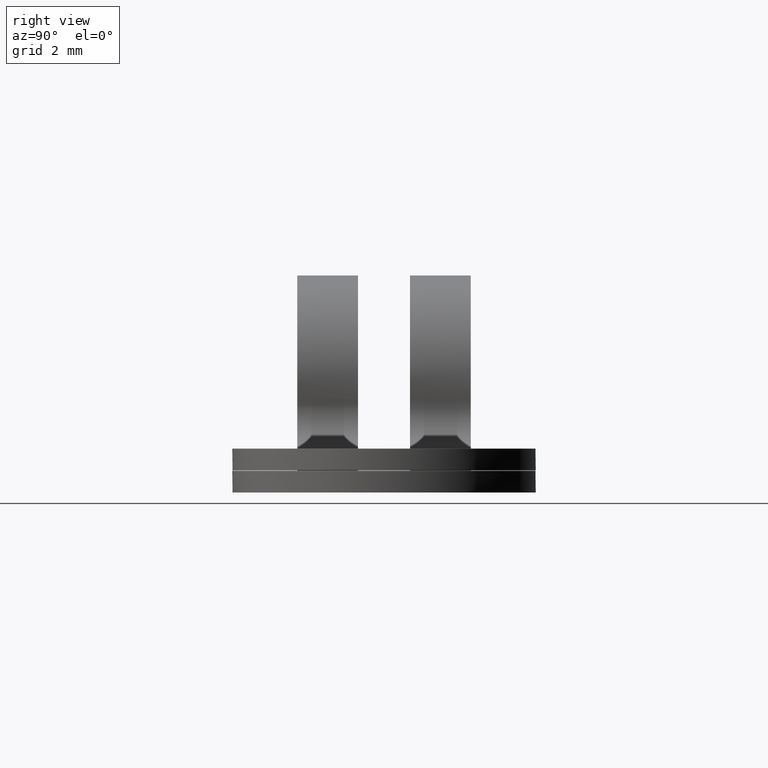
[diagram: clean part render]
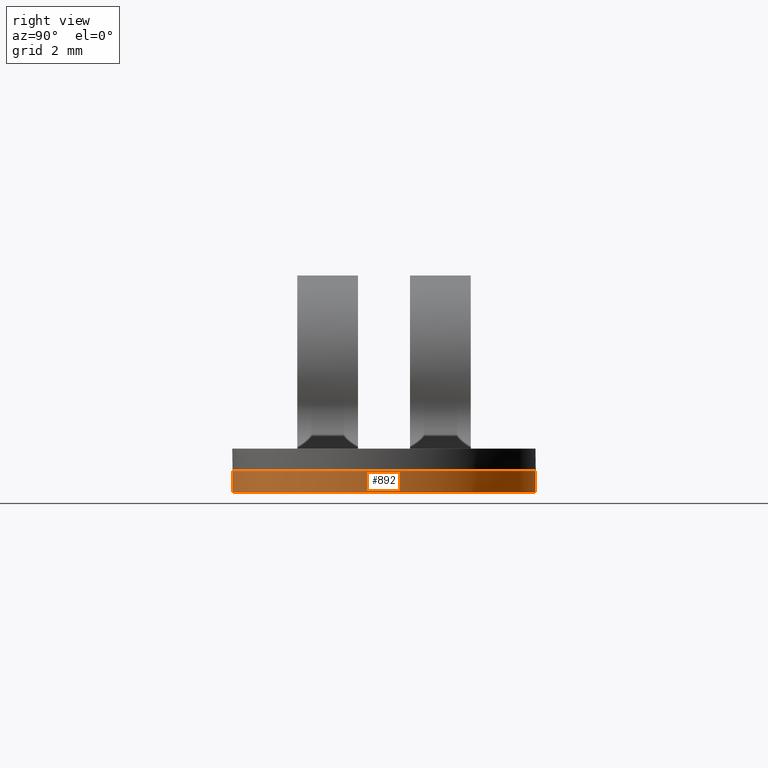
[diagram: same view with one face highlighted and labeled with its STEP entity id]
A machine part, right view. The second image highlights one B-rep face of the part: STEP entity #892.
In plain terms, the highlighted face is a freeform B-spline surface patch.
Its self-contained STEP definition (entity closure, byte-faithful):
#621=CARTESIAN_POINT('',(6.027718691425030,-2.000000021102710,-2.499999999999945));
#622=VERTEX_POINT('',#621);
#628=CARTESIAN_POINT('',(6.027718691425030,-2.000000021102710,-2.0));
#629=VERTEX_POINT('',#628);
#630=CARTESIAN_POINT('',(6.027718691425030,-2.000000021102710,-2.0));
#631=CARTESIAN_POINT('',(6.027718691425030,-2.000000021102710,-2.499999999999945));
#632=QUASI_UNIFORM_CURVE('',1,(#630,#631),.UNSPECIFIED.,.F.,.U.);
#633=EDGE_CURVE('',#629,#622,#632,.T.);
#761=CARTESIAN_POINT('',(6.027718691425051,2.000000021102730,-2.0));
#762=VERTEX_POINT('',#761);
#768=CARTESIAN_POINT('',(6.027718691425051,2.000000021102730,-2.499999999999945));
#769=VERTEX_POINT('',#768);
#770=CARTESIAN_POINT('',(6.027718691425051,2.000000021102730,-2.0));
#771=CARTESIAN_POINT('',(6.027718691425051,2.000000021102730,-2.499999999999945));
#772=QUASI_UNIFORM_CURVE('',1,(#770,#771),.UNSPECIFIED.,.F.,.U.);
#773=EDGE_CURVE('',#762,#769,#772,.T.);
#828=CARTESIAN_POINT('',(5.953066445597488,-1.888275039801290,-1.987500000000001));
#829=CARTESIAN_POINT('',(5.953066445597488,-1.888275039801290,-2.512812499999944));
#830=CARTESIAN_POINT('',(8.163952456649970,-5.338690913335957,-1.987500000000002));
#831=CARTESIAN_POINT('',(8.163952456649970,-5.338690913335957,-2.512812499999944));
#832=CARTESIAN_POINT('',(11.226029214740620,-2.615260616491812,-1.987500000000001));
#833=CARTESIAN_POINT('',(11.226029214740620,-2.615260616491812,-2.512812499999944));
#834=CARTESIAN_POINT('',(14.288105972831270,0.108169680352334,-1.987500000000002));
#835=CARTESIAN_POINT('',(14.288105972831270,0.108169680352334,-2.512812499999944));
#836=CARTESIAN_POINT('',(11.119191282650720,2.706508830764657,-1.987500000000001));
#837=CARTESIAN_POINT('',(11.119191282650720,2.706508830764657,-2.512812499999944));
#838=CARTESIAN_POINT('',(7.950276592470164,5.304847981176978,-1.987500000000002));
#839=CARTESIAN_POINT('',(7.950276592470164,5.304847981176978,-2.512812499999944));
#840=CARTESIAN_POINT('',(5.879654783012561,1.768478094357151,-1.987500000000001));
#841=CARTESIAN_POINT('',(5.879654783012561,1.768478094357151,-2.512812499999944));
#849=(BOUNDED_SURFACE()B_SPLINE_SURFACE(1,2,((#828,#830,#832,#834,#836,#838,#840),(#829,#831,#833,#835,#837,#839,#841)),.UNSPECIFIED.,.F.,.F.,.U.)B_SPLINE_SURFACE_WITH_KNOTS((2,2),(3,2,2,3),(0.0,1.0),(0.0,6.454088401982459,12.908176803964921,19.362265205947381),.UNSPECIFIED.)GEOMETRIC_REPRESENTATION_ITEM()RATIONAL_B_SPLINE_SURFACE(((1.0,0.649448048330184,1.0,0.649448048330184,1.0,0.649448048330184,1.0),(1.0,0.649448048330184,1.0,0.649448048330184,1.0,0.649448048330184,1.0)))REPRESENTATION_ITEM('')SURFACE());
#850=CARTESIAN_POINT('',(6.027718691425043,2.000000021102734,-2.0));
#851=CARTESIAN_POINT('',(7.496194370752702,4.108937621765434,-2.0));
#852=CARTESIAN_POINT('',(9.948097185376359,3.339385016736788,-2.0));
#853=CARTESIAN_POINT('',(12.400000000000000,2.569832411708147,-2.0));
#854=CARTESIAN_POINT('',(12.400000000000000,0.0,-2.0));
#855=CARTESIAN_POINT('',(12.400000000000004,-2.569832411708168,-2.0));
#856=CARTESIAN_POINT('',(9.948097185376330,-3.339385016736797,-2.0));
#857=CARTESIAN_POINT('',(7.496194370752669,-4.108937621765422,-2.0));
#858=CARTESIAN_POINT('',(6.027718691425026,-2.000000021102709,-2.0));
#866=(BOUNDED_CURVE()B_SPLINE_CURVE(2,(#850,#851,#852,#853,#854,#855,#856,#857,#858),.UNSPECIFIED.,.F.,.U.)B_SPLINE_CURVE_WITH_KNOTS((3,2,2,2,3),(0.0,0.250000000000000,0.500000000000000,0.750000000000000,1.0),.UNSPECIFIED.)CURVE()GEOMETRIC_REPRESENTATION_ITEM()RATIONAL_B_SPLINE_CURVE((1.0,0.806057174981699,1.0,0.806057174981699,1.0,0.806057174981699,1.0,0.806057174981699,1.0))REPRESENTATION_ITEM(''));
#867=EDGE_CURVE('',#762,#629,#866,.T.);
#868=ORIENTED_EDGE('',*,*,#867,.T.);
#869=ORIENTED_EDGE('',*,*,#633,.T.);
#870=CARTESIAN_POINT('',(6.027718691425028,-2.000000021102711,-2.499999999999945));
#871=CARTESIAN_POINT('',(7.496194370752670,-4.108937621765421,-2.499999999999945));
#872=CARTESIAN_POINT('',(9.948097185376328,-3.339385016736797,-2.499999999999945));
#873=CARTESIAN_POINT('',(12.400000000000002,-2.569832411708170,-2.499999999999945));
#874=CARTESIAN_POINT('',(12.400000000000000,0.0,-2.499999999999945));
#875=CARTESIAN_POINT('',(12.400000000000002,2.569832411708148,-2.499999999999945));
#876=CARTESIAN_POINT('',(9.948097185376357,3.339385016736788,-2.499999999999945));
#877=CARTESIAN_POINT('',(7.496194370752702,4.108937621765434,-2.499999999999945));
#878=CARTESIAN_POINT('',(6.027718691425044,2.000000021102734,-2.499999999999945));
#886=(BOUNDED_CURVE()B_SPLINE_CURVE(2,(#870,#871,#872,#873,#874,#875,#876,#877,#878),.UNSPECIFIED.,.F.,.U.)B_SPLINE_CURVE_WITH_KNOTS((3,2,2,2,3),(0.0,0.250000000000000,0.500000000000000,0.750000000000000,1.0),.UNSPECIFIED.)CURVE()GEOMETRIC_REPRESENTATION_ITEM()RATIONAL_B_SPLINE_CURVE((1.0,0.806057174981699,1.0,0.806057174981699,1.0,0.806057174981699,1.0,0.806057174981699,1.0))REPRESENTATION_ITEM(''));
#887=EDGE_CURVE('',#622,#769,#886,.T.);
#888=ORIENTED_EDGE('',*,*,#887,.T.);
#889=ORIENTED_EDGE('',*,*,#773,.F.);
#890=EDGE_LOOP('',(#868,#869,#888,#889));
#891=FACE_OUTER_BOUND('',#890,.T.);
#892=ADVANCED_FACE('',(#891),#849,.T.);